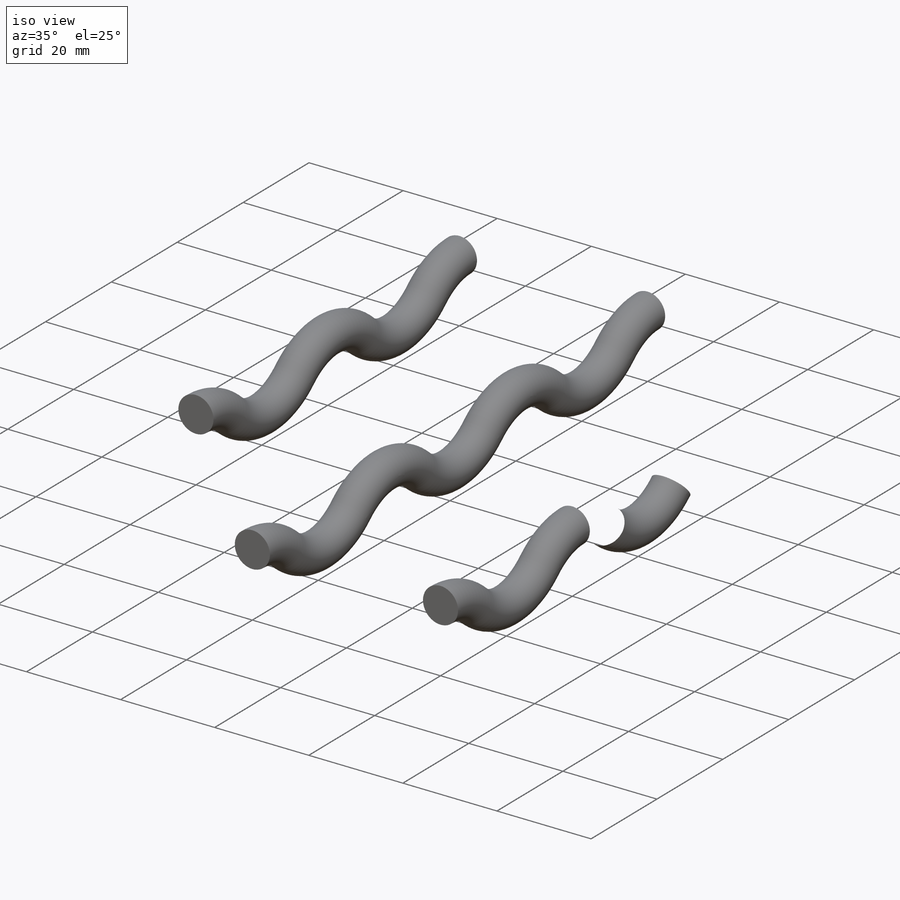
[diagram: iso view]
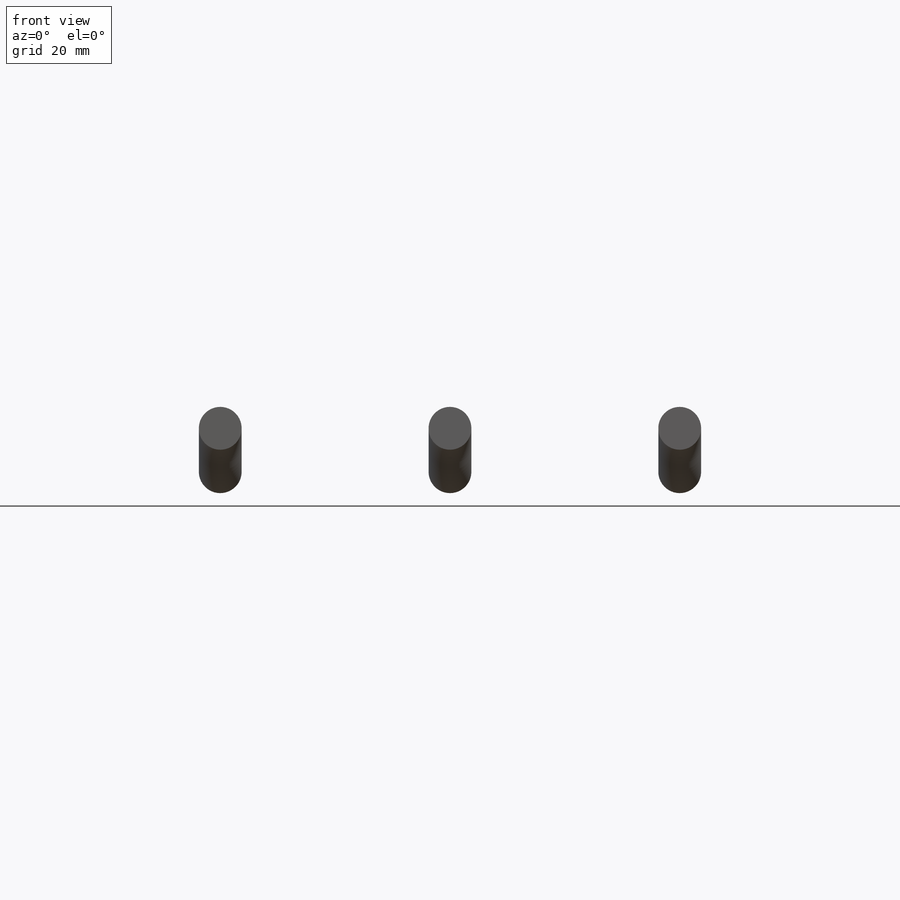
[diagram: front view]
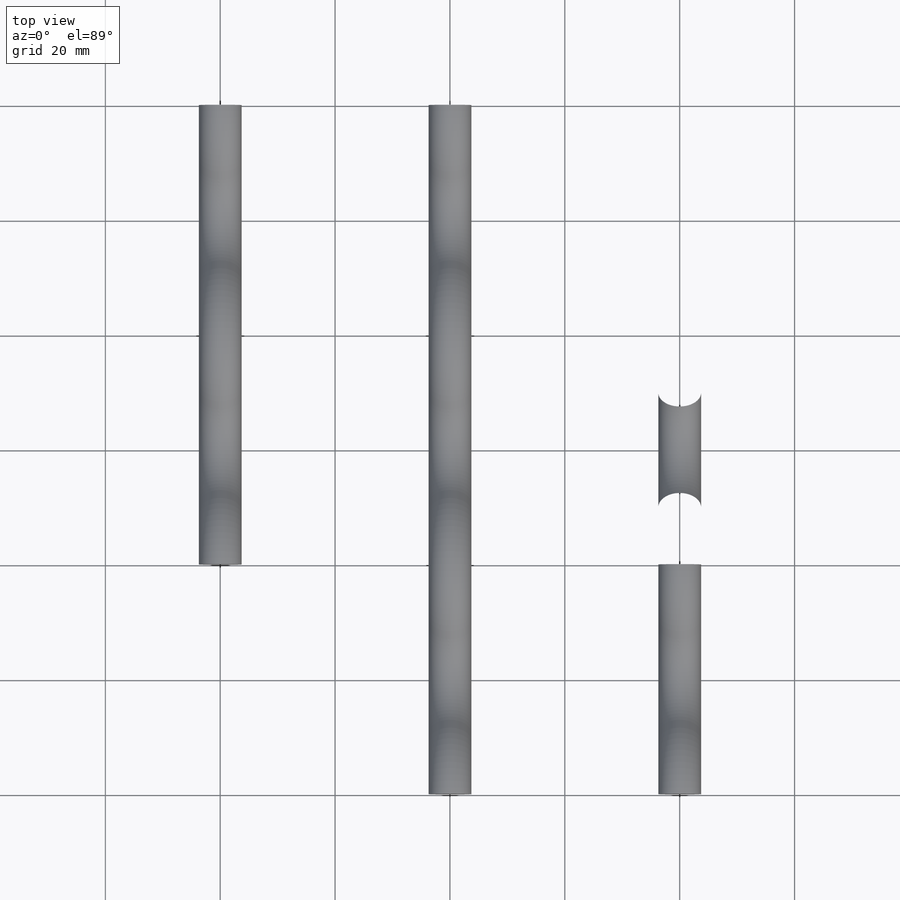
[diagram: top view]
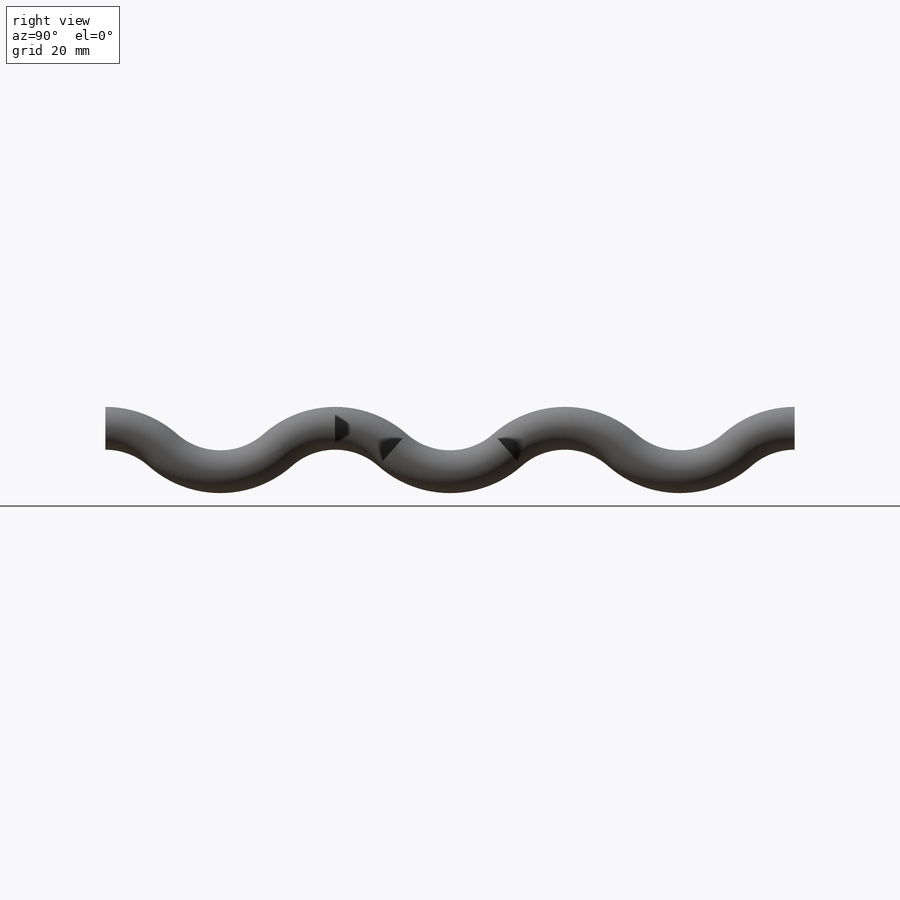
[diagram: right view]
SOLIDWORKS PART (.sldprt)
format: sldprt  version: not decoded by parser v0  size: 1,888,768 bytes
history: native  units: mm
features: plane x5, pattern_linear x4, mirror x3, sketch x2, material x1, sweep x1 (+8 scaffold rows collapsed)
feature tree (24):
  scaffold x8  (default folders/planes/origin — collapsed)
  material  "Material <nicht festgelegt>"
  plane  "Vorderansicht"
  plane  "Draufsicht"
  plane  "Seitenansicht"
  plane  "Ebene1"
  plane  "Ebene2"
  sketch  "Skizze1"  dims[c1.D1=~15.118579mm c1.D4=~15.118579mm c1.D2=~7.559289mm c1.D3=50.0mm c2.D4=~17.853571mm c3.D4=~97.180756deg c3.D5=110.0mm c4.D5=~48.590378deg c4.D6=25.0mm c5.D6=~48.590378deg c5.D3=~43.239253mm c5.D5=~7.559289mm]
  sketch  "Skizze2"  dims[D1=~7.459289mm]
  sweep  "Austragung1"
  mirror  "Spiegeln1"
  mirror  "Spiegeln2"
  mirror  "Spiegeln3"
  pattern_linear  "Lineares Muster1"  Count1=2 Count2=1 Spacing1=75mm
  pattern_linear  "Lineares Muster2"  Count1=2 Count2=1 Spacing1=7.559289mm Spacing2=75mm
  pattern_linear  "Lineares Muster3"  Count1=2 Count2=1 Spacing1=75mm
  pattern_linear  "Lineares Muster4"  Count1=3 Count2=3 Spacing1=40mm Spacing2=40mm
decode coverage: 6 of 10 modeling features carry decoded parameters
note: ~ marks probable driven/reference dimensions
note: suppression state not decoded; provenance and decode notes live in map.json
